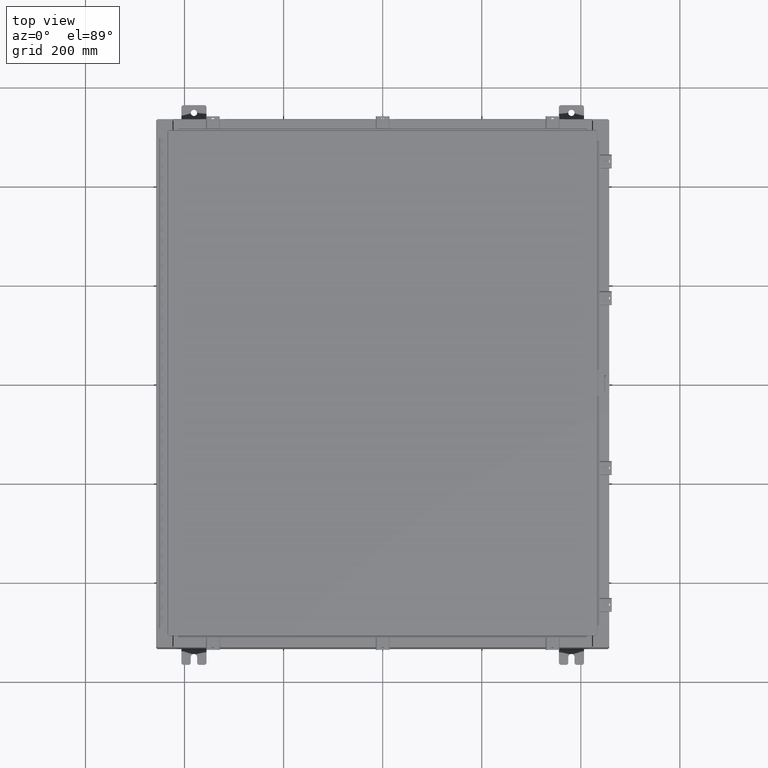
[diagram: clean part render]
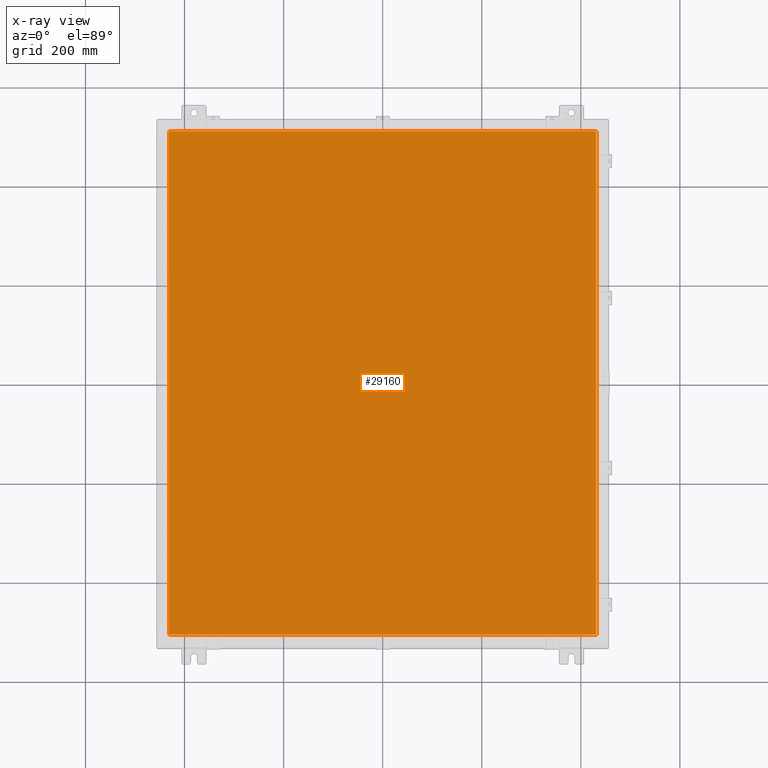
[diagram: x-ray — body ghosted, one internal face saturated and labeled with its STEP entity id]
A machine part, top view, then the same camera in x-ray: the body is ghosted and one INTERNAL B-rep face — a face not visible from any outside direction — is saturated and labeled: STEP entity #29160.
In plain terms, the highlighted planar face has unit normal (0, 0, -1).
Its self-contained STEP definition (entity closure, byte-faithful):
#434 = VERTEX_POINT ( 'NONE', #29360 ) ;
#4035 = VECTOR ( 'NONE', #32874, 39.37007874015748100 ) ;
#5579 = DIRECTION ( 'NONE',  ( 0.0000000000000000000, 0.0000000000000000000, -1.000000000000000000 ) ) ;
#6545 = DIRECTION ( 'NONE',  ( 0.0000000000000000000, -1.000000000000000000, 0.0000000000000000000 ) ) ;
#8433 = ORIENTED_EDGE ( 'NONE', *, *, #26175, .F. ) ;
#9584 = CARTESIAN_POINT ( 'NONE',  ( 16.99029999999999800, 20.00630000000000700, -0.07469999999999804600 ) ) ;
#14168 = LINE ( 'NONE', #9584, #43462 ) ;
#14230 = CARTESIAN_POINT ( 'NONE',  ( -16.99029999999999400, 20.00630000000000300, -0.07470000000000019700 ) ) ;
#14254 = LINE ( 'NONE', #36578, #4035 ) ;
#15163 = LINE ( 'NONE', #14230, #25358 ) ;
#15417 = VERTEX_POINT ( 'NONE', #31306 ) ;
#17796 = AXIS2_PLACEMENT_3D ( 'NONE', #39856, #5579, #32298 ) ;
#18132 = EDGE_CURVE ( 'NONE', #45782, #434, #14168, .T. ) ;
#18253 = ORIENTED_EDGE ( 'NONE', *, *, #44814, .F. ) ;
#18771 = DIRECTION ( 'NONE',  ( 0.0000000000000000000, 1.000000000000000000, 0.0000000000000000000 ) ) ;
#20824 = PLANE ( 'NONE',  #17796 ) ;
#25358 = VECTOR ( 'NONE', #6545, 39.37007874015748100 ) ;
#26175 = EDGE_CURVE ( 'NONE', #15417, #45782, #36124, .T. ) ;
#29160 = ADVANCED_FACE ( 'NONE', ( #43079 ), #20824, .T. ) ;
#29360 = CARTESIAN_POINT ( 'NONE',  ( -16.99029999999999400, 20.00630000000000300, -0.07470000000000000300 ) ) ;
#31306 = CARTESIAN_POINT ( 'NONE',  ( 16.99029999999999800, -20.00630000000000300, -0.07470000000000000300 ) ) ;
#32075 = CARTESIAN_POINT ( 'NONE',  ( -16.99029999999999800, -20.00630000000000300, -0.07470000000000000300 ) ) ;
#32298 = DIRECTION ( 'NONE',  ( -1.000000000000000000, 0.0000000000000000000, -0.0000000000000000000 ) ) ;
#32443 = DIRECTION ( 'NONE',  ( -1.000000000000000000, -0.0000000000000000000, -0.0000000000000000000 ) ) ;
#32874 = DIRECTION ( 'NONE',  ( 1.000000000000000000, -0.0000000000000000000, -0.0000000000000000000 ) ) ;
#36124 = LINE ( 'NONE', #41647, #47481 ) ;
#36578 = CARTESIAN_POINT ( 'NONE',  ( -16.99029999999999800, -20.00630000000000700, -0.07469999999999804600 ) ) ;
#37372 = ORIENTED_EDGE ( 'NONE', *, *, #18132, .F. ) ;
#39041 = VERTEX_POINT ( 'NONE', #32075 ) ;
#39856 = CARTESIAN_POINT ( 'NONE',  ( 0.0000000000000000000, 0.0000000000000000000, -0.07470000000000000300 ) ) ;
#41647 = CARTESIAN_POINT ( 'NONE',  ( 16.99029999999999800, -20.00630000000000300, -0.07470000000000019700 ) ) ;
#42831 = CARTESIAN_POINT ( 'NONE',  ( 16.99029999999999800, 20.00630000000000300, -0.07470000000000000300 ) ) ;
#43079 = FACE_OUTER_BOUND ( 'NONE', #46067, .T. ) ;
#43462 = VECTOR ( 'NONE', #32443, 39.37007874015748100 ) ;
#44814 = EDGE_CURVE ( 'NONE', #39041, #15417, #14254, .T. ) ;
#45782 = VERTEX_POINT ( 'NONE', #42831 ) ;
#46067 = EDGE_LOOP ( 'NONE', ( #8433, #18253, #47585, #37372 ) ) ;
#47481 = VECTOR ( 'NONE', #18771, 39.37007874015748100 ) ;
#47585 = ORIENTED_EDGE ( 'NONE', *, *, #48382, .F. ) ;
#48382 = EDGE_CURVE ( 'NONE', #434, #39041, #15163, .T. ) ;